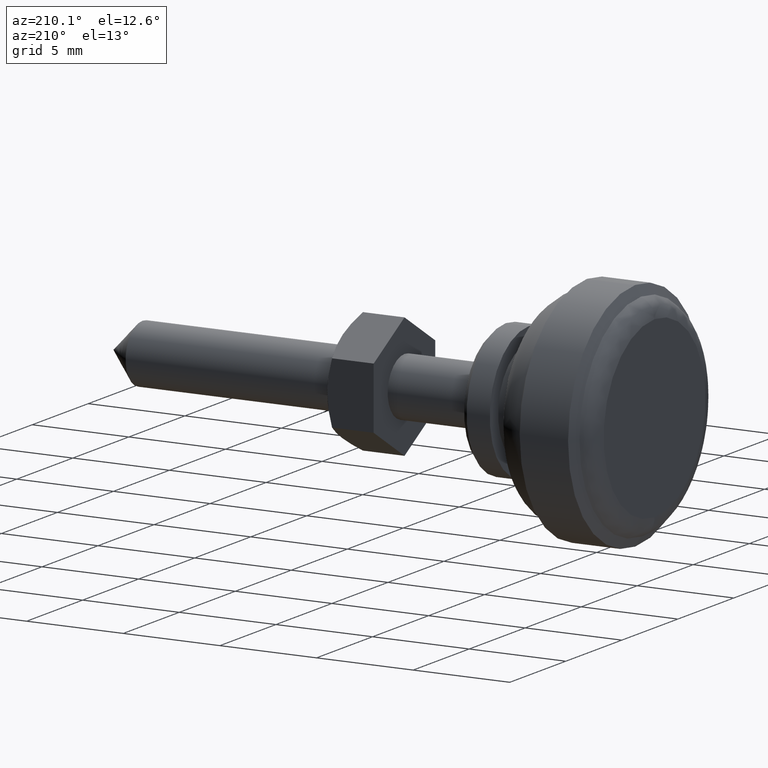
[diagram: clean part render]
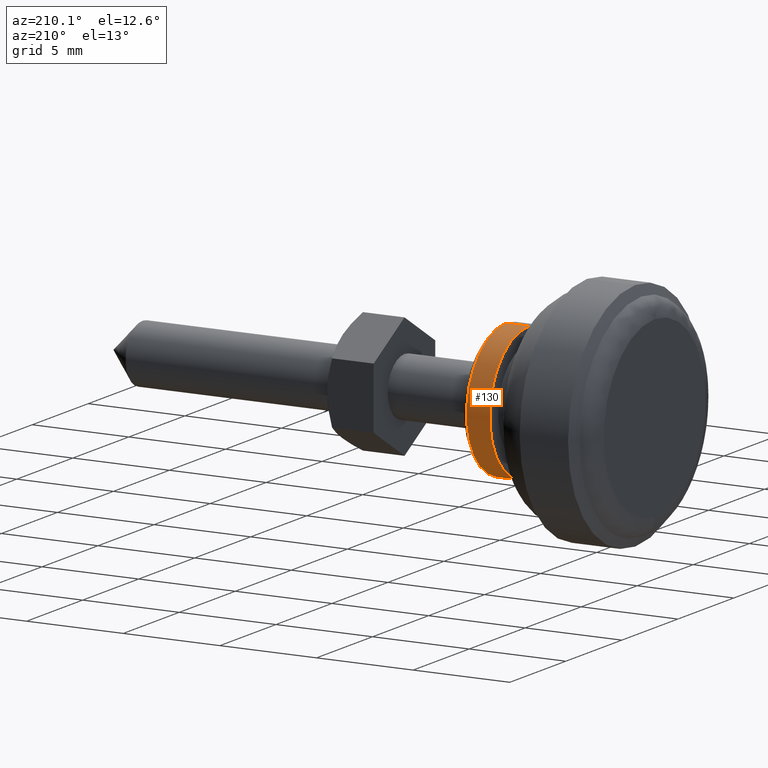
[diagram: same view with one face highlighted and labeled with its STEP entity id]
A machine part, auxiliary view. The second image highlights one B-rep face of the part: STEP entity #130.
In plain terms, the highlighted cylindrical surface (partial cylindrical patch) has radius 3.5 mm, axis along (1, 0, 0).
Its self-contained STEP definition (entity closure, byte-faithful):
#130=ADVANCED_FACE('',(#336),#335,.T.);
#335=CYLINDRICAL_SURFACE('',#743,3.50000000000E+00);
#336=FACE_OUTER_BOUND('',#744,.T.);
#740=CARTESIAN_POINT('',(0.00000000000E+00,0.00000000000E+00,0.00000000000E+00));
#741=DIRECTION('',(1.00000000000E+00,-0.00000000000E+00,-0.00000000000E+00));
#742=DIRECTION('',(0.00000000000E+00,0.00000000000E+00,-1.00000000000E+00));
#743=AXIS2_PLACEMENT_3D('',#740,#741,#742);
#744=EDGE_LOOP('',(#974,#975,#976,#977));
#974=ORIENTED_EDGE('',*,*,#1113,.T.);
#975=ORIENTED_EDGE('',*,*,#1114,.F.);
#976=ORIENTED_EDGE('',*,*,#1080,.F.);
#977=ORIENTED_EDGE('',*,*,#1115,.T.);
#1080=EDGE_CURVE('',#1200,#1201,#1202,.T.);
#1113=EDGE_CURVE('',#1400,#1399,#1419,.T.);
#1114=EDGE_CURVE('',#1201,#1399,#1425,.T.);
#1115=EDGE_CURVE('',#1200,#1400,#1431,.T.);
#1200=VERTEX_POINT('',#1743);
#1201=VERTEX_POINT('',#1744);
#1202=CIRCLE('',#1748,3.50000000000E+00);
#1399=VERTEX_POINT('',#1861);
#1400=VERTEX_POINT('',#1862);
#1419=CIRCLE('',#1874,3.50000000000E+00);
#1425=(BOUNDED_CURVE() B_SPLINE_CURVE(1,(#1875,#1876),.UNSPECIFIED.,.F.,.F.) B_SPLINE_CURVE_WITH_KNOTS((2,2),(8.33333134656E-02,9.16666653270E-01),.UNSPECIFIED.) CURVE() GEOMETRIC_REPRESENTATION_ITEM() RATIONAL_B_SPLINE_CURVE((1.00000000000E+00,1.00000000000E+00)) REPRESENTATION_ITEM('') );
#1431=(BOUNDED_CURVE() B_SPLINE_CURVE(1,(#1877,#1878),.UNSPECIFIED.,.F.,.F.) B_SPLINE_CURVE_WITH_KNOTS((2,2),(8.33333333333E-02,9.16666666667E-01),.UNSPECIFIED.) CURVE() GEOMETRIC_REPRESENTATION_ITEM() RATIONAL_B_SPLINE_CURVE((7.50000000000E-01,7.50000000000E-01)) REPRESENTATION_ITEM('') );
#1743=CARTESIAN_POINT('',(-2.15000000000E+01,0.00000000000E+00,3.50000000000E+00));
#1744=CARTESIAN_POINT('',(-2.15000000000E+01,1.48029736617E-16,-3.50000000000E+00));
#1745=CARTESIAN_POINT('',(-2.15000000000E+01,0.00000000000E+00,0.00000000000E+00));
#1746=DIRECTION('',(-1.00000000000E+00,0.00000000000E+00,0.00000000000E+00));
#1747=DIRECTION('',(0.00000000000E+00,-1.22460635382E-16,1.00000000000E+00));
#1748=AXIS2_PLACEMENT_3D('',#1745,#1746,#1747);
#1861=CARTESIAN_POINT('',(-2.03000000000E+01,1.48029736617E-16,-3.50000000000E+00));
#1862=CARTESIAN_POINT('',(-2.03000000000E+01,0.00000000000E+00,3.50000000000E+00));
#1871=CARTESIAN_POINT('',(-2.03000000000E+01,0.00000000000E+00,0.00000000000E+00));
#1872=DIRECTION('',(-1.00000000000E+00,0.00000000000E+00,0.00000000000E+00));
#1873=DIRECTION('',(0.00000000000E+00,-1.22460635382E-16,1.00000000000E+00));
#1874=AXIS2_PLACEMENT_3D('',#1871,#1872,#1873);
#1875=CARTESIAN_POINT('',(-2.15000000286E+01,0.00000000000E+00,-3.50000000000E+00));
#1876=CARTESIAN_POINT('',(-2.03000000193E+01,0.00000000000E+00,-3.50000000000E+00));
#1877=CARTESIAN_POINT('',(-2.15000000000E+01,0.00000000000E+00,3.50000000000E+00));
#1878=CARTESIAN_POINT('',(-2.03000000000E+01,0.00000000000E+00,3.50000000000E+00));